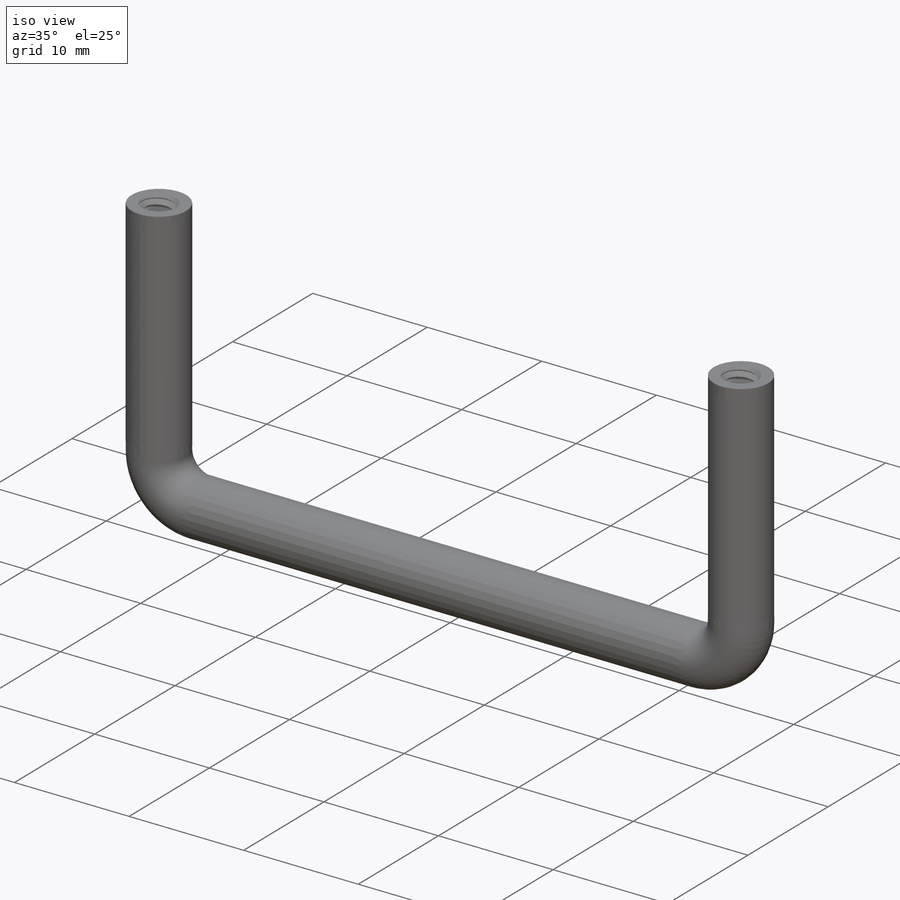
[diagram: iso view]
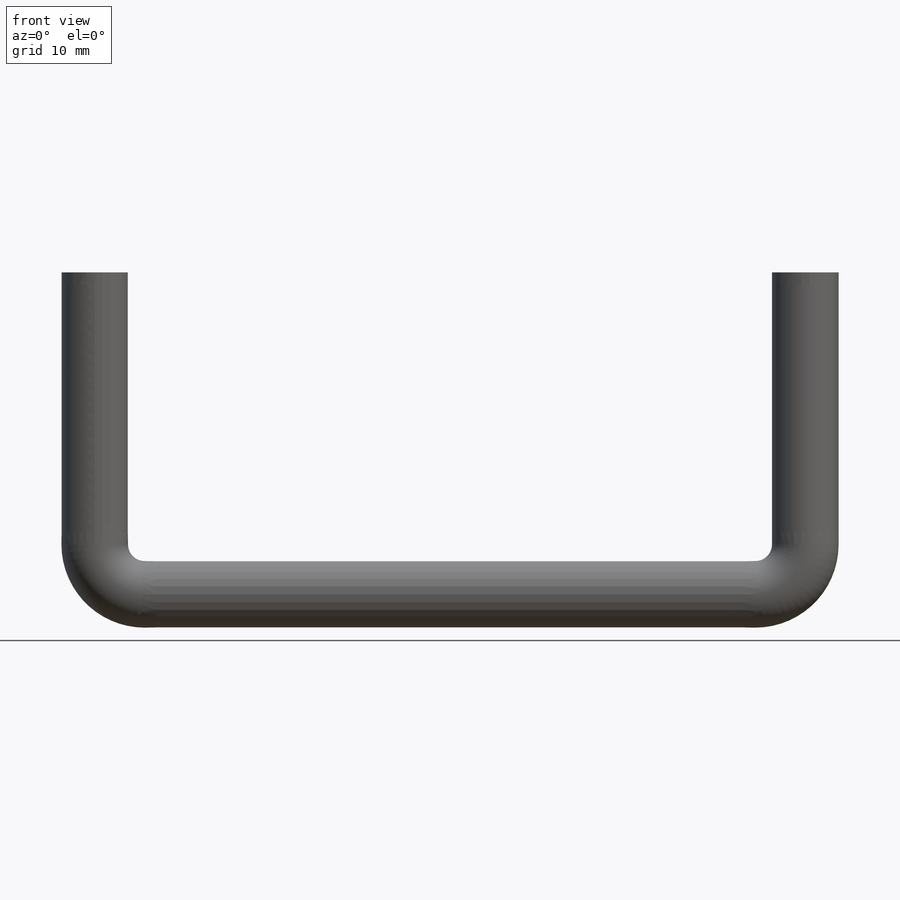
[diagram: front view]
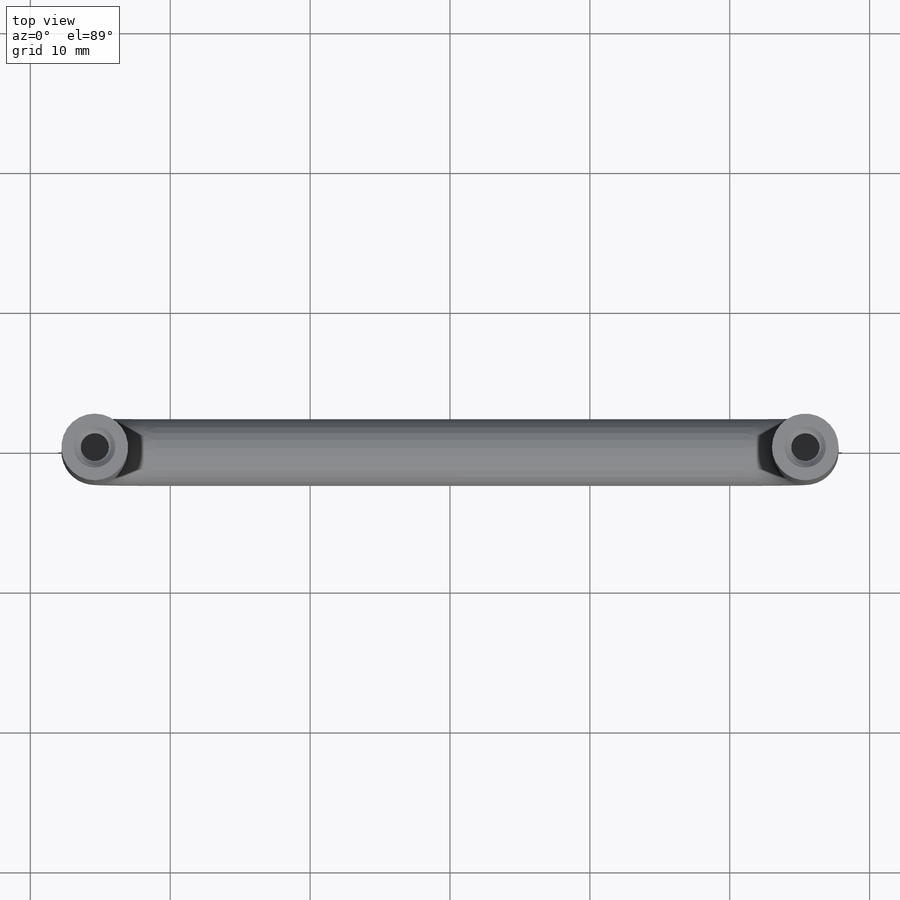
[diagram: top view]
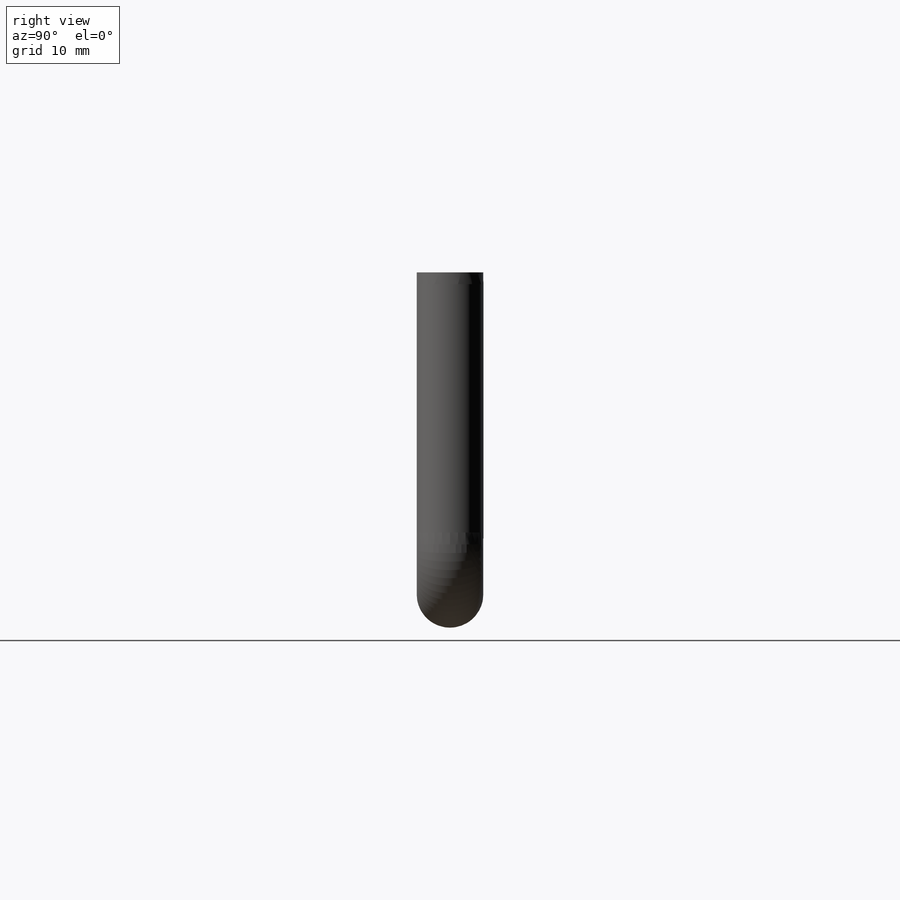
[diagram: right view]
SOLIDWORKS PART (.sldprt)
format: sldprt  version: not decoded by parser v0  size: 572,416 bytes
history: native  units: mm
features: sketch x7, plane x2, sweep x2, cut_extrude x2, material x1, helix x1, pattern_linear x1 (+11 scaffold rows collapsed)
feature tree (27):
  scaffold x11  (default folders/planes/origin — collapsed)
  material  "Material <not specified>"
  sketch  "Sketch1"  dims[D2=~3.571875mm A=50.8mm Grip Dia=4.7625mm D1=~2.38125mm Projected Dis=25.4mm Thread Dia=2.8448mm Thread Depth=6.35mm]
  plane  "Plane1"
  sketch  "Sketch2"
  sketch  "Sketch3"
  sweep  "Sweep1"
  sketch  "Sketch4"
  cut_extrude  "Extrude1"  [1 undecoded]
  sketch  "Sketch5"  dims[D1=0.0mm]
  helix  "Helix/Spiral1"  Pitch=6.985mm pitch=0.635mm
  plane  "Plane2"
  sketch  "Sketch6"  dims[c1.D1=~4.707044mm c2.D1=60.0deg c2.D2=~0.079375mm c2.D3=0.3175mm]
  sweep  "Sweep2"
  sketch  "Sketch7"  dims[D1=0.0508mm]
  cut_extrude  "Extrude2"  [1 undecoded]
  pattern_linear  "LPattern5"  Count1=2 Count2=1 Spacing1=50.8mm Spacing2=0.254mm
decode coverage: 6 of 13 modeling features carry decoded parameters
note: ~ marks probable driven/reference dimensions
note: 2 parameter values undecoded
note: suppression state not decoded; provenance and decode notes live in map.json
